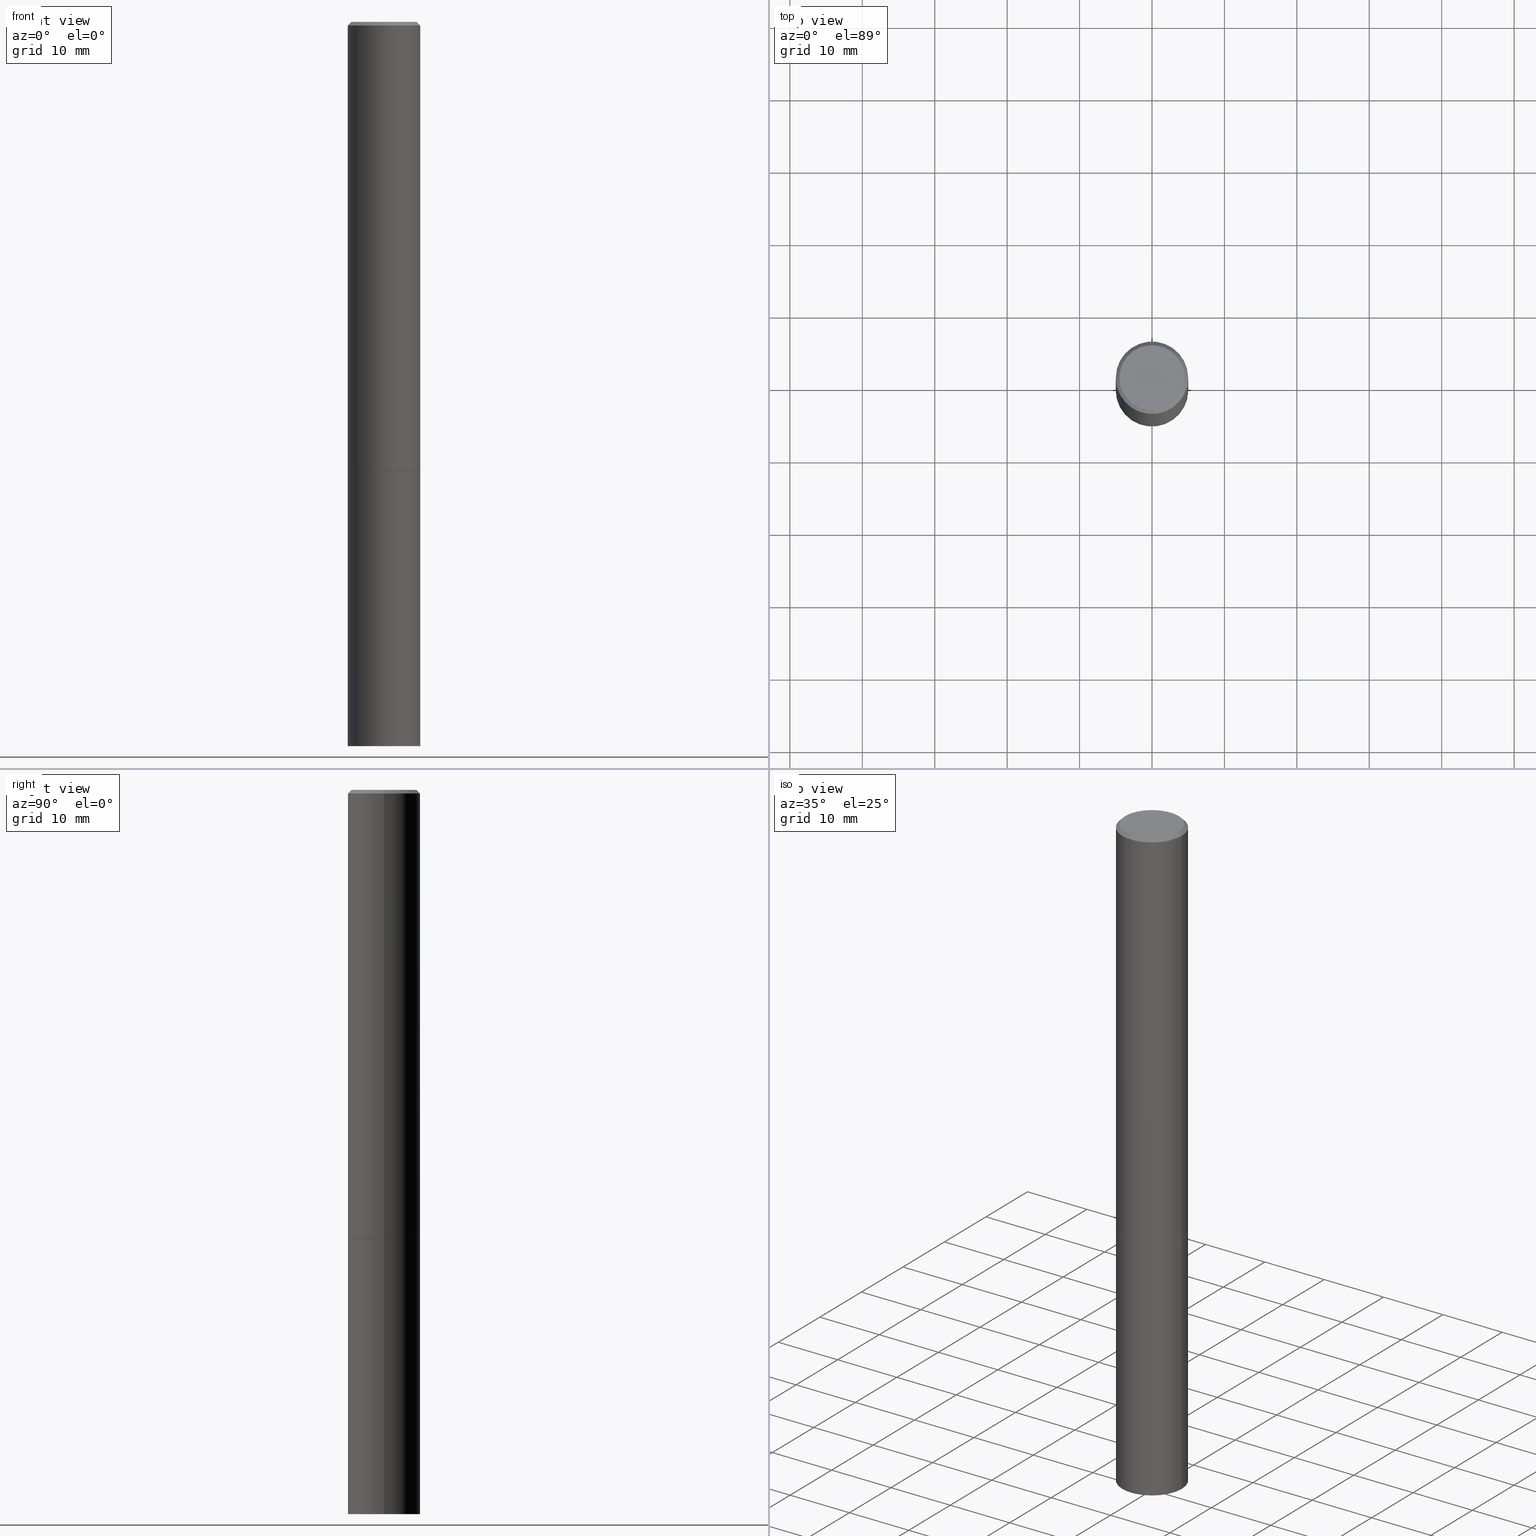
[diagram: canonical four-view strip — front | top / right | iso, engineering-drawing reading convention]
A machine part, canonical four-view strip (front | top / right | iso — engineering-drawing reading convention). The complete STEP part file that produces these views, byte-faithful:
ISO-10303-21;
HEADER;
FILE_DESCRIPTION (( 'STEP AP203' ),
    '1' );
FILE_NAME ('43325.STEP',
    '2024-02-28T04:28:04',
    ( '' ),
    ( '' ),
    'SwSTEP 2.0',
    'SolidWorks 2023',
    '' );
FILE_SCHEMA (( 'CONFIG_CONTROL_DESIGN' ));
ENDSEC;

DATA;
#1 = ADVANCED_FACE ( 'NONE', ( #193 ), #311, .T. ) ;
#2 = PERSON_AND_ORGANIZATION ( #30, #282 ) ;
#3 = ORIENTED_EDGE ( 'NONE', *, *, #116, .F. ) ;
#4 = VERTEX_POINT ( 'NONE', #305 ) ;
#5 = EDGE_CURVE ( 'NONE', #160, #4, #47, .T. ) ;
#6 = CARTESIAN_POINT ( 'NONE',  ( 0.1968500000000000250, -1.512055823412800660E-14, -3.937000000000000277 ) ) ;
#7 = ORIENTED_EDGE ( 'NONE', *, *, #316, .F. ) ;
#8 = DIRECTION ( 'NONE',  ( -2.445468806185136597E-29, 3.491481338843145583E-15, 1.000000000000000000 ) ) ;
#9 = DATE_AND_TIME ( #184, #306 ) ;
#10 = DIRECTION ( 'NONE',  ( -0.7071067811865469066, 2.468850131082250355E-15, -0.7071067811865481278 ) ) ;
#11 = DIRECTION ( 'NONE',  ( -2.445468806185136597E-29, 3.491481338843145583E-15, 1.000000000000000000 ) ) ;
#12 = CIRCLE ( 'NONE', #315, 0.1968500000000000250 ) ;
#13 = ORIENTED_EDGE ( 'NONE', *, *, #5, .F. ) ;
#14 = CARTESIAN_POINT ( 'NONE',  ( -0.1968500000000000527, -2.895644097366364896E-15, -2.439899999999999736 ) ) ;
#15 = DIRECTION ( 'NONE',  ( 1.000000000000000000, 0.000000000000000000, 0.000000000000000000 ) ) ;
#16 = EDGE_CURVE ( 'NONE', #231, #160, #143, .T. ) ;
#17 = CARTESIAN_POINT ( 'NONE',  ( 5.969144809017300159E-29, -8.522356799982234543E-15, -2.440900000000000070 ) ) ;
#18 = LOCAL_TIME ( 23, 28, 4.000000000000000000, #277 ) ;
#19 = CARTESIAN_POINT ( 'NONE',  ( 5.969144809017300159E-29, -8.522356799982234543E-15, -2.440900000000000070 ) ) ;
#20 = EDGE_CURVE ( 'NONE', #261, #4, #351, .T. ) ;
#21 = ORIENTED_EDGE ( 'NONE', *, *, #349, .T. ) ;
#22 = CARTESIAN_POINT ( 'NONE',  ( 5.966699340211114556E-29, -8.518865318643389958E-15, -2.439899999999999736 ) ) ;
#23 = SHAPE_DEFINITION_REPRESENTATION ( #264, #119 ) ;
#24 = CARTESIAN_POINT ( 'NONE',  ( 1.234936949548813631E-15, 0.1768499999999996464, -6.153342185293588703E-16 ) ) ;
#25 = AXIS2_PLACEMENT_3D ( 'NONE', #249, #336, #51 ) ;
#26 = COORDINATED_UNIVERSAL_TIME_OFFSET ( 5, 0, .BEHIND. ) ;
#27 = FACE_OUTER_BOUND ( 'NONE', #149, .T. ) ;
#28 = ORIENTED_EDGE ( 'NONE', *, *, #88, .F. ) ;
#29 = UNCERTAINTY_MEASURE_WITH_UNIT (LENGTH_MEASURE( 1.000000000000000082E-05 ), #354, 'distance_accuracy_value', 'NONE');
#30 = PERSON ( 'UNSPECIFIED', 'UNSPECIFIED', 'UNSPECIFIED', ('UNSPECIFIED'), ('UNSPECIFIED'), ('UNSPECIFIED') ) ;
#31 = ORIENTED_EDGE ( 'NONE', *, *, #251, .T. ) ;
#32 = ADVANCED_FACE ( 'NONE', ( #239 ), #96, .F. ) ;
#33 = VERTEX_POINT ( 'NONE', #357 ) ;
#34 = AXIS2_PLACEMENT_3D ( 'NONE', #327, #178, #215 ) ;
#35 = DIRECTION ( 'NONE',  ( -2.445468806185136597E-29, 3.491481338843145583E-15, 1.000000000000000000 ) ) ;
#36 = EDGE_LOOP ( 'NONE', ( #39, #324, #208, #181 ) ) ;
#37 = APPLICATION_CONTEXT ( 'configuration controlled 3d designs of mechanical parts and assemblies' ) ;
#38 = CARTESIAN_POINT ( 'NONE',  ( 4.890937612370278413E-31, -6.982962677686297772E-17, -0.02000000000000002123 ) ) ;
#39 = ORIENTED_EDGE ( 'NONE', *, *, #253, .F. ) ;
#40 = CARTESIAN_POINT ( 'NONE',  ( -1.043851414335219820E-46, 1.490343170380447200E-32, 4.268512490100411279E-18 ) ) ;
#41 = AXIS2_PLACEMENT_3D ( 'NONE', #135, #320, #68 ) ;
#42 = LINE ( 'NONE', #348, #365 ) ;
#43 = DIRECTION ( 'NONE',  ( 2.445468806185136597E-29, -3.491481338843145583E-15, -1.000000000000000000 ) ) ;
#44 = DIRECTION ( 'NONE',  ( 0.000000000000000000, 0.000000000000000000, 1.000000000000000000 ) ) ;
#45 = EDGE_CURVE ( 'NONE', #72, #33, #107, .T. ) ;
#46 = DIRECTION ( 'NONE',  ( -2.445468806185136597E-29, 3.491481338843145583E-15, 1.000000000000000000 ) ) ;
#47 = LINE ( 'NONE', #246, #281 ) ;
#48 = CIRCLE ( 'NONE', #228, 0.1958499999999999963 ) ;
#49 =( GEOMETRIC_REPRESENTATION_CONTEXT ( 3 ) GLOBAL_UNCERTAINTY_ASSIGNED_CONTEXT ( ( #29 ) ) GLOBAL_UNIT_ASSIGNED_CONTEXT ( ( #354, #242, #212 ) ) REPRESENTATION_CONTEXT ( 'NONE', 'WORKASPACE' ) );
#50 = CARTESIAN_POINT ( 'NONE',  ( 0.000000000000000000, 0.000000000000000000, 0.000000000000000000 ) ) ;
#51 = DIRECTION ( 'NONE',  ( 1.000000000000000000, -6.982962677686267499E-15, 0.000000000000000000 ) ) ;
#52 = CALENDAR_DATE ( 2024, 27, 2 ) ;
#53 = DIRECTION ( 'NONE',  ( 2.445468806185136597E-29, -3.491481338843145583E-15, -1.000000000000000000 ) ) ;
#54 = ADVANCED_FACE ( 'NONE', ( #197 ), #286, .F. ) ;
#55 = APPROVAL_DATE_TIME ( #278, #295 ) ;
#56 = CONICAL_SURFACE ( 'NONE', #313, 0.1968499999999996364, 0.7853981633974473908 ) ;
#57 = VERTEX_POINT ( 'NONE', #302 ) ;
#58 = EDGE_CURVE ( 'NONE', #156, #262, #42, .T. ) ;
#59 = CIRCLE ( 'NONE', #41, 0.1968499999999996364 ) ;
#60 = APPROVAL_PERSON_ORGANIZATION ( #79, #295, #308 ) ;
#61 = CARTESIAN_POINT ( 'NONE',  ( -0.1958499999999999963, -7.130758851996077764E-15, -2.440900000000000070 ) ) ;
#62 = EDGE_CURVE ( 'NONE', #57, #4, #59, .T. ) ;
#63 = ORIENTED_EDGE ( 'NONE', *, *, #122, .F. ) ;
#64 = PRODUCT ( '43325', '43325', '', ( #271 ) ) ;
#65 = DIRECTION ( 'NONE',  ( -2.445468806185136597E-29, 3.491481338843145583E-15, 1.000000000000000000 ) ) ;
#66 = ORIENTED_EDGE ( 'NONE', *, *, #127, .T. ) ;
#67 = DIRECTION ( 'NONE',  ( 0.7071067811864388819, -2.468850131081119129E-15, 0.7071067811866561525 ) ) ;
#68 = DIRECTION ( 'NONE',  ( 1.000000000000000000, -6.982962677686266711E-15, 0.000000000000000000 ) ) ;
#69 = ORIENTED_EDGE ( 'NONE', *, *, #122, .T. ) ;
#70 = DIRECTION ( 'NONE',  ( -2.445468806185136597E-29, 3.491481338843145583E-15, 1.000000000000000000 ) ) ;
#71 = PERSON_AND_ORGANIZATION ( #30, #282 ) ;
#72 = VERTEX_POINT ( 'NONE', #6 ) ;
#73 = AXIS2_PLACEMENT_3D ( 'NONE', #17, #217, #163 ) ;
#74 = COORDINATED_UNIVERSAL_TIME_OFFSET ( 5, 0, .BEHIND. ) ;
#75 = CARTESIAN_POINT ( 'NONE',  ( 0.000000000000000000, 0.000000000000000000, 0.000000000000000000 ) ) ;
#76 = CC_DESIGN_PERSON_AND_ORGANIZATION_ASSIGNMENT ( #194, #117, ( #89 ) ) ;
#77 = DIRECTION ( 'NONE',  ( -2.445468806185136877E-29, 3.491481338843145188E-15, 1.000000000000000000 ) ) ;
#78 = AXIS2_PLACEMENT_3D ( 'NONE', #100, #70, #299 ) ;
#79 = PERSON_AND_ORGANIZATION ( #30, #282 ) ;
#80 = CC_DESIGN_APPROVAL ( #214, ( #355 ) ) ;
#81 = CARTESIAN_POINT ( 'NONE',  ( -0.1968500000000000250, -9.735456040160091980E-15, -2.440900000000000070 ) ) ;
#82 = CARTESIAN_POINT ( 'NONE',  ( -0.1958499999999999963, -7.125460397647855362E-15, -2.440900000000000070 ) ) ;
#83 = ADVANCED_FACE ( 'NONE', ( #240 ), #179, .T. ) ;
#84 = COORDINATED_UNIVERSAL_TIME_OFFSET ( 5, 0, .BEHIND. ) ;
#85 = COORDINATED_UNIVERSAL_TIME_OFFSET ( 5, 0, .BEHIND. ) ;
#86 = CLOSED_SHELL ( 'NONE', ( #224, #83, #54, #1 ) ) ;
#87 = EDGE_LOOP ( 'NONE', ( #3, #110, #257, #159 ) ) ;
#88 = EDGE_CURVE ( 'NONE', #72, #156, #137, .T. ) ;
#89 = SECURITY_CLASSIFICATION ( '', '', #256 ) ;
#90 = PERSON_AND_ORGANIZATION_ROLE ( 'creator' ) ;
#91 = ORIENTED_EDGE ( 'NONE', *, *, #147, .T. ) ;
#92 = DATE_TIME_ROLE ( 'classification_date' ) ;
#93 = DIRECTION ( 'NONE',  ( 1.000000000000000000, -6.982962677686267499E-15, 0.000000000000000000 ) ) ;
#94 = ORIENTED_EDGE ( 'NONE', *, *, #16, .T. ) ;
#95 = AXIS2_PLACEMENT_3D ( 'NONE', #50, #222, #104 ) ;
#96 = PLANE ( 'NONE',  #321 ) ;
#97 = CARTESIAN_POINT ( 'NONE',  ( 1.374596203102637849E-15, 0.1968499999999862582, -3.937000000000000721 ) ) ;
#98 = PERSON_AND_ORGANIZATION ( #30, #282 ) ;
#99 = EDGE_LOOP ( 'NONE', ( #317, #155, #69, #204 ) ) ;
#100 = CARTESIAN_POINT ( 'NONE',  ( -1.043851414335219820E-46, 1.490343170380447200E-32, 4.268512490100411279E-18 ) ) ;
#101 = LENGTH_MEASURE_WITH_UNIT ( LENGTH_MEASURE( 0.02539999999999999897 ), #335 );
#102 = LINE ( 'NONE', #158, #341 ) ;
#103 = PERSON_AND_ORGANIZATION_ROLE ( 'design_owner' ) ;
#104 = DIRECTION ( 'NONE',  ( 1.000000000000000000, -6.982962677686266711E-15, 4.876176775795935793E-29 ) ) ;
#105 = CC_DESIGN_PERSON_AND_ORGANIZATION_ASSIGNMENT ( #173, #284, ( #164 ) ) ;
#106 = CIRCLE ( 'NONE', #73, 0.1958499999999999963 ) ;
#107 = LINE ( 'NONE', #218, #258 ) ;
#108 = DIRECTION ( 'NONE',  ( -1.000000000000000000, 6.982962677686265922E-15, -4.876176775795935793E-29 ) ) ;
#109 = CALENDAR_DATE ( 2024, 27, 2 ) ;
#110 = ORIENTED_EDGE ( 'NONE', *, *, #253, .T. ) ;
#111 = DIRECTION ( 'NONE',  ( 1.000000000000000000, -6.982962677686262766E-15, 0.000000000000000000 ) ) ;
#112 = AXIS2_PLACEMENT_3D ( 'NONE', #361, #165, #252 ) ;
#113 = VECTOR ( 'NONE', #245, 39.37007874015748143 ) ;
#114 = EDGE_CURVE ( 'NONE', #4, #57, #237, .T. ) ;
#115 = DIRECTION ( 'NONE',  ( -2.445468806185136597E-29, 3.491481338843145583E-15, 1.000000000000000000 ) ) ;
#116 = EDGE_CURVE ( 'NONE', #225, #261, #300, .T. ) ;
#117 = PERSON_AND_ORGANIZATION_ROLE ( 'classification_officer' ) ;
#118 = CALENDAR_DATE ( 2024, 27, 2 ) ;
#119 = ADVANCED_BREP_SHAPE_REPRESENTATION ( '43325', ( #207, #211, #291 ), #49 ) ;
#120 = CONICAL_SURFACE ( 'NONE', #274, 0.1958499999999999963, 0.7853981633972946241 ) ;
#121 = LOCAL_TIME ( 23, 28, 4.000000000000000000, #85 ) ;
#122 = EDGE_CURVE ( 'NONE', #347, #287, #102, .T. ) ;
#123 = ORIENTED_EDGE ( 'NONE', *, *, #114, .F. ) ;
#124 = EDGE_LOOP ( 'NONE', ( #28, #269 ) ) ;
#125 = DIRECTION ( 'NONE',  ( -1.000000000000000000, 6.982962677686265922E-15, -4.876176775795935793E-29 ) ) ;
#126 = DIRECTION ( 'NONE',  ( 2.438088387897960049E-29, -3.491481338843145188E-15, -1.000000000000000000 ) ) ;
#127 = EDGE_CURVE ( 'NONE', #160, #287, #226, .T. ) ;
#128 = AXIS2_PLACEMENT_3D ( 'NONE', #333, #161, #273 ) ;
#129 = CC_DESIGN_APPROVAL ( #295, ( #89 ) ) ;
#130 = DIRECTION ( 'NONE',  ( 1.000000000000000000, -6.982962677686262766E-15, 0.000000000000000000 ) ) ;
#131 = APPLICATION_PROTOCOL_DEFINITION ( 'international standard', 'config_control_design', 1994, #227 ) ;
#132 = ORIENTED_EDGE ( 'NONE', *, *, #266, .F. ) ;
#133 = FACE_OUTER_BOUND ( 'NONE', #260, .T. ) ;
#134 = PERSON_AND_ORGANIZATION ( #30, #282 ) ;
#135 = CARTESIAN_POINT ( 'NONE',  ( 4.890937612370278413E-31, -6.982962677686297772E-17, -0.02000000000000002123 ) ) ;
#136 = DIRECTION ( 'NONE',  ( 1.000000000000000000, -6.982962677686265922E-15, 4.876176775795935793E-29 ) ) ;
#137 = CIRCLE ( 'NONE', #199, 0.1968500000000000250 ) ;
#138 = CARTESIAN_POINT ( 'NONE',  ( 0.1958499999999999963, -9.889970040407088560E-15, -2.440900000000000070 ) ) ;
#139 = AXIS2_PLACEMENT_3D ( 'NONE', #334, #363, #338 ) ;
#140 = CARTESIAN_POINT ( 'NONE',  ( 0.1968499999999998307, -1.374596203102540425E-15, 9.598753983154291049E-30 ) ) ;
#141 = EDGE_LOOP ( 'NONE', ( #213, #297, #132, #148 ) ) ;
#142 = LINE ( 'NONE', #168, #201 ) ;
#143 = LINE ( 'NONE', #61, #330 ) ;
#144 = DIRECTION ( 'NONE',  ( -1.000000000000000000, 6.982962677686266711E-15, 0.000000000000000000 ) ) ;
#145 = AXIS2_PLACEMENT_3D ( 'NONE', #19, #46, #248 ) ;
#146 = CYLINDRICAL_SURFACE ( 'NONE', #95, 0.1968499999999998307 ) ;
#147 = EDGE_CURVE ( 'NONE', #347, #231, #48, .T. ) ;
#148 = ORIENTED_EDGE ( 'NONE', *, *, #45, .F. ) ;
#149 = EDGE_LOOP ( 'NONE', ( #91, #94, #175, #63 ) ) ;
#150 = LOCAL_TIME ( 23, 28, 4.000000000000000000, #26 ) ;
#151 = DIRECTION ( 'NONE',  ( -0.7071067811864388819, 7.493145998869961307E-15, 0.7071067811866561525 ) ) ;
#152 = APPROVAL ( #255, 'UNSPECIFIED' ) ;
#153 = LOCAL_TIME ( 23, 28, 4.000000000000000000, #84 ) ;
#154 = EDGE_LOOP ( 'NONE', ( #319, #7 ) ) ;
#155 = ORIENTED_EDGE ( 'NONE', *, *, #316, .T. ) ;
#156 = VERTEX_POINT ( 'NONE', #353 ) ;
#157 = ADVANCED_FACE ( 'NONE', ( #206 ), #120, .T. ) ;
#158 = CARTESIAN_POINT ( 'NONE',  ( 0.1958499999999999963, -9.889970040407088560E-15, -2.440900000000000070 ) ) ;
#159 = ORIENTED_EDGE ( 'NONE', *, *, #20, .F. ) ;
#160 = VERTEX_POINT ( 'NONE', #14 ) ;
#161 = DIRECTION ( 'NONE',  ( -2.445468806185136597E-29, 3.491481338843145583E-15, 1.000000000000000000 ) ) ;
#162 = CLOSED_SHELL ( 'NONE', ( #280, #285, #183, #322, #189, #157, #32, #176 ) ) ;
#163 = DIRECTION ( 'NONE',  ( 1.000000000000000000, -6.982962677686262766E-15, 0.000000000000000000 ) ) ;
#164 = PRODUCT_DEFINITION_FORMATION_WITH_SPECIFIED_SOURCE ( 'ANY', '', #64, .NOT_KNOWN. ) ;
#165 = DIRECTION ( 'NONE',  ( -2.445468806185136597E-29, 3.491481338843145583E-15, 1.000000000000000000 ) ) ;
#166 = EDGE_CURVE ( 'NONE', #261, #225, #268, .T. ) ;
#167 = CALENDAR_DATE ( 2024, 27, 2 ) ;
#168 = CARTESIAN_POINT ( 'NONE',  ( 0.1968499999999996364, -1.420318657638186558E-15, -0.02000000000000002123 ) ) ;
#169 = CYLINDRICAL_SURFACE ( 'NONE', #139, 0.1968500000000000250 ) ;
#170 = AXIS2_PLACEMENT_3D ( 'NONE', #24, #340, #108 ) ;
#171 = APPROVAL_PERSON_ORGANIZATION ( #310, #152, #366 ) ;
#172 = APPROVAL_DATE_TIME ( #196, #152 ) ;
#173 = PERSON_AND_ORGANIZATION ( #30, #282 ) ;
#174 = CC_DESIGN_DATE_AND_TIME_ASSIGNMENT ( #364, #92, ( #89 ) ) ;
#175 = ORIENTED_EDGE ( 'NONE', *, *, #251, .F. ) ;
#176 = ADVANCED_FACE ( 'NONE', ( #133 ), #241, .F. ) ;
#177 = ORIENTED_EDGE ( 'NONE', *, *, #5, .T. ) ;
#178 = DIRECTION ( 'NONE',  ( 2.438088387897960049E-29, -3.491481338843145188E-15, -1.000000000000000000 ) ) ;
#179 = PLANE ( 'NONE',  #290 ) ;
#180 = ORIENTED_EDGE ( 'NONE', *, *, #198, .F. ) ;
#181 = ORIENTED_EDGE ( 'NONE', *, *, #114, .T. ) ;
#182 = AXIS2_PLACEMENT_3D ( 'NONE', #318, #65, #263 ) ;
#183 = ADVANCED_FACE ( 'NONE', ( #279 ), #56, .T. ) ;
#184 = CALENDAR_DATE ( 2024, 27, 2 ) ;
#185 = DIRECTION ( 'NONE',  ( -2.438088387897960049E-29, 3.491481338843145188E-15, 1.000000000000000000 ) ) ;
#186 = DIRECTION ( 'NONE',  ( -2.445468806185136597E-29, 3.491481338843145583E-15, 1.000000000000000000 ) ) ;
#187 = DIRECTION ( 'NONE',  ( 0.7071067811865469066, -7.319954787623254468E-15, -0.7071067811865481278 ) ) ;
#188 = DATE_AND_TIME ( #109, #18 ) ;
#189 = ADVANCED_FACE ( 'NONE', ( #312 ), #219, .T. ) ;
#190 = CARTESIAN_POINT ( 'NONE',  ( -0.1768499999999996464, 1.269851762937245083E-15, 4.268512490091652920E-18 ) ) ;
#191 = CIRCLE ( 'NONE', #301, 0.1968500000000000250 ) ;
#192 = CARTESIAN_POINT ( 'NONE',  ( 0.1968500000000000527, -9.893461521745931567E-15, -2.439899999999999736 ) ) ;
#193 = FACE_OUTER_BOUND ( 'NONE', #200, .T. ) ;
#194 = PERSON_AND_ORGANIZATION ( #30, #282 ) ;
#195 = DIRECTION ( 'NONE',  ( 1.000000000000000000, -6.982962677686266711E-15, 0.000000000000000000 ) ) ;
#196 = DATE_AND_TIME ( #52, #121 ) ;
#197 = FACE_OUTER_BOUND ( 'NONE', #265, .T. ) ;
#198 = EDGE_CURVE ( 'NONE', #262, #33, #12, .T. ) ;
#199 = AXIS2_PLACEMENT_3D ( 'NONE', #293, #232, #93 ) ;
#200 = EDGE_LOOP ( 'NONE', ( #233, #339, #325, #180 ) ) ;
#201 = VECTOR ( 'NONE', #187, 39.37007874015748143 ) ;
#202 = DIRECTION ( 'NONE',  ( 1.000000000000000000, -6.982962677686266711E-15, 0.000000000000000000 ) ) ;
#203 = DIRECTION ( 'NONE',  ( -2.445468806185136877E-29, 3.491481338843145188E-15, 1.000000000000000000 ) ) ;
#204 = ORIENTED_EDGE ( 'NONE', *, *, #127, .F. ) ;
#205 = AXIS2_PLACEMENT_3D ( 'NONE', #38, #356, #202 ) ;
#206 = FACE_OUTER_BOUND ( 'NONE', #99, .T. ) ;
#207 = MANIFOLD_SOLID_BREP ( 'Body-Move/Copy2[1]', #86 ) ;
#208 = ORIENTED_EDGE ( 'NONE', *, *, #20, .T. ) ;
#209 = CARTESIAN_POINT ( 'NONE',  ( -0.1968499999999996364, 1.304766576325675944E-15, -0.02000000000000002123 ) ) ;
#210 = DIRECTION ( 'NONE',  ( 1.000000000000000000, -6.982962677686266711E-15, 4.875932113059887537E-29 ) ) ;
#211 = MANIFOLD_SOLID_BREP ( 'Body-Move/Copy2[2]', #162 ) ;
#212 =( NAMED_UNIT ( * ) SI_UNIT ( $, .STERADIAN. ) SOLID_ANGLE_UNIT ( ) );
#213 = ORIENTED_EDGE ( 'NONE', *, *, #88, .T. ) ;
#214 = APPROVAL ( #216, 'UNSPECIFIED' ) ;
#215 = DIRECTION ( 'NONE',  ( -1.000000000000000000, 6.982962677686265922E-15, -4.876176775795935793E-29 ) ) ;
#216 = APPROVAL_STATUS ( 'not_yet_approved' ) ;
#217 = DIRECTION ( 'NONE',  ( -2.445468806185136597E-29, 3.491481338843145583E-15, 1.000000000000000000 ) ) ;
#218 = CARTESIAN_POINT ( 'NONE',  ( 0.1968500000000000250, -1.374596203102541608E-15, 9.598753983154300858E-30 ) ) ;
#219 = CYLINDRICAL_SURFACE ( 'NONE', #112, 0.1968499999999998307 ) ;
#220 = EDGE_CURVE ( 'NONE', #156, #72, #254, .T. ) ;
#221 = DIRECTION ( 'NONE',  ( -1.000000000000000000, 6.982962677686266711E-15, 0.000000000000000000 ) ) ;
#222 = DIRECTION ( 'NONE',  ( -2.445468806185136597E-29, 3.491481338843145583E-15, 1.000000000000000000 ) ) ;
#223 = CARTESIAN_POINT ( 'NONE',  ( 5.969144809017299038E-29, -8.522356799982232966E-15, -2.440900000000000070 ) ) ;
#224 = ADVANCED_FACE ( 'NONE', ( #272 ), #169, .T. ) ;
#225 = VERTEX_POINT ( 'NONE', #276 ) ;
#226 = CIRCLE ( 'NONE', #182, 0.1968500000000000527 ) ;
#227 = APPLICATION_CONTEXT ( 'configuration controlled 3d designs of mechanical parts and assemblies' ) ;
#228 = AXIS2_PLACEMENT_3D ( 'NONE', #270, #8, #235 ) ;
#229 = ORIENTED_EDGE ( 'NONE', *, *, #116, .T. ) ;
#230 = CONICAL_SURFACE ( 'NONE', #352, 0.1968499999999996364, 0.7853981633974473908 ) ;
#231 = VERTEX_POINT ( 'NONE', #82 ) ;
#232 = DIRECTION ( 'NONE',  ( -2.445468806185136597E-29, 3.491481338843145583E-15, 1.000000000000000000 ) ) ;
#233 = ORIENTED_EDGE ( 'NONE', *, *, #58, .F. ) ;
#234 = DIMENSIONAL_EXPONENTS ( 1.000000000000000000, 0.000000000000000000, 0.000000000000000000, 0.000000000000000000, 0.000000000000000000, 0.000000000000000000, 0.000000000000000000 ) ;
#235 = DIRECTION ( 'NONE',  ( 1.000000000000000000, -6.982962677686262766E-15, 0.000000000000000000 ) ) ;
#236 = APPROVAL_DATE_TIME ( #9, #214 ) ;
#237 = CIRCLE ( 'NONE', #205, 0.1968499999999996364 ) ;
#238 = APPROVAL_PERSON_ORGANIZATION ( #71, #214, #329 ) ;
#239 = FACE_OUTER_BOUND ( 'NONE', #154, .T. ) ;
#240 = FACE_OUTER_BOUND ( 'NONE', #124, .T. ) ;
#241 = PLANE ( 'NONE',  #170 ) ;
#242 =( NAMED_UNIT ( * ) PLANE_ANGLE_UNIT ( ) SI_UNIT ( $, .RADIAN. ) );
#243 = VECTOR ( 'NONE', #10, 39.37007874015748143 ) ;
#244 = CC_DESIGN_DATE_AND_TIME_ASSIGNMENT ( #188, #247, ( #355 ) ) ;
#245 = DIRECTION ( 'NONE',  ( -2.445468806185136877E-29, 3.491481338843145188E-15, 1.000000000000000000 ) ) ;
#246 = CARTESIAN_POINT ( 'NONE',  ( -0.1968499999999998307, 1.398703375343756013E-15, -9.682923725166775270E-30 ) ) ;
#247 = DATE_TIME_ROLE ( 'creation_date' ) ;
#248 = DIRECTION ( 'NONE',  ( 1.000000000000000000, -6.982962677686262766E-15, 0.000000000000000000 ) ) ;
#249 = CARTESIAN_POINT ( 'NONE',  ( 9.627810689950883669E-29, -1.374596203102546341E-14, -3.937000000000000277 ) ) ;
#250 = CC_DESIGN_APPROVAL ( #152, ( #164 ) ) ;
#251 = EDGE_CURVE ( 'NONE', #287, #160, #342, .T. ) ;
#252 = DIRECTION ( 'NONE',  ( 1.000000000000000000, -6.982962677686266711E-15, 4.876176775795935793E-29 ) ) ;
#253 = EDGE_CURVE ( 'NONE', #225, #57, #142, .T. ) ;
#254 = CIRCLE ( 'NONE', #25, 0.1968500000000000250 ) ;
#255 = APPROVAL_STATUS ( 'not_yet_approved' ) ;
#256 = SECURITY_CLASSIFICATION_LEVEL ( 'unclassified' ) ;
#257 = ORIENTED_EDGE ( 'NONE', *, *, #62, .T. ) ;
#258 = VECTOR ( 'NONE', #77, 39.37007874015748143 ) ;
#259 = CONICAL_SURFACE ( 'NONE', #145, 0.1958499999999999963, 0.7853981633972946241 ) ;
#260 = EDGE_LOOP ( 'NONE', ( #298, #229 ) ) ;
#261 = VERTEX_POINT ( 'NONE', #190 ) ;
#262 = VERTEX_POINT ( 'NONE', #81 ) ;
#263 = DIRECTION ( 'NONE',  ( 1.000000000000000000, -6.982962677686266711E-15, 0.000000000000000000 ) ) ;
#264 = PRODUCT_DEFINITION_SHAPE ( 'NONE', 'NONE',  #355 ) ;
#265 = EDGE_LOOP ( 'NONE', ( #292, #288 ) ) ;
#266 = EDGE_CURVE ( 'NONE', #33, #262, #191, .T. ) ;
#267 = APPLICATION_PROTOCOL_DEFINITION ( 'international standard', 'config_control_design', 1994, #37 ) ;
#268 = CIRCLE ( 'NONE', #78, 0.1768499999999996464 ) ;
#269 = ORIENTED_EDGE ( 'NONE', *, *, #220, .F. ) ;
#270 = CARTESIAN_POINT ( 'NONE',  ( 5.969144809017300159E-29, -8.522356799982234543E-15, -2.440900000000000070 ) ) ;
#271 = MECHANICAL_CONTEXT ( 'NONE', #37, 'mechanical' ) ;
#272 = FACE_OUTER_BOUND ( 'NONE', #141, .T. ) ;
#273 = DIRECTION ( 'NONE',  ( 1.000000000000000000, -6.982962677686265922E-15, 4.876176775795935793E-29 ) ) ;
#274 = AXIS2_PLACEMENT_3D ( 'NONE', #296, #11, #130 ) ;
#275 = FACE_OUTER_BOUND ( 'NONE', #36, .T. ) ;
#276 = CARTESIAN_POINT ( 'NONE',  ( 0.1768499999999996464, -1.316798864272039577E-15, 4.268512490109333727E-18 ) ) ;
#277 = COORDINATED_UNIVERSAL_TIME_OFFSET ( 5, 0, .BEHIND. ) ;
#278 = DATE_AND_TIME ( #167, #153 ) ;
#279 = FACE_OUTER_BOUND ( 'NONE', #87, .T. ) ;
#280 = ADVANCED_FACE ( 'NONE', ( #27 ), #259, .T. ) ;
#281 = VECTOR ( 'NONE', #359, 39.37007874015748143 ) ;
#282 = ORGANIZATION ( 'UNSPECIFIED', 'UNSPECIFIED', '' ) ;
#283 = DIRECTION ( 'NONE',  ( -2.445468806185136597E-29, 3.491481338843145583E-15, 1.000000000000000000 ) ) ;
#284 = PERSON_AND_ORGANIZATION_ROLE ( 'design_supplier' ) ;
#285 = ADVANCED_FACE ( 'NONE', ( #307 ), #146, .T. ) ;
#286 = PLANE ( 'NONE',  #34 ) ;
#287 = VERTEX_POINT ( 'NONE', #192 ) ;
#288 = ORIENTED_EDGE ( 'NONE', *, *, #198, .T. ) ;
#289 = PRODUCT_RELATED_PRODUCT_CATEGORY ( 'detail', '', ( #64 ) ) ;
#290 = AXIS2_PLACEMENT_3D ( 'NONE', #97, #126, #125 ) ;
#291 = AXIS2_PLACEMENT_3D ( 'NONE', #75, #44, #15 ) ;
#292 = ORIENTED_EDGE ( 'NONE', *, *, #266, .T. ) ;
#293 = CARTESIAN_POINT ( 'NONE',  ( 9.627810689950883669E-29, -1.374596203102546341E-14, -3.937000000000000277 ) ) ;
#294 = ORIENTED_EDGE ( 'NONE', *, *, #62, .F. ) ;
#295 = APPROVAL ( #362, 'UNSPECIFIED' ) ;
#296 = CARTESIAN_POINT ( 'NONE',  ( 5.969144809017300159E-29, -8.522356799982234543E-15, -2.440900000000000070 ) ) ;
#297 = ORIENTED_EDGE ( 'NONE', *, *, #58, .T. ) ;
#298 = ORIENTED_EDGE ( 'NONE', *, *, #166, .T. ) ;
#299 = DIRECTION ( 'NONE',  ( 1.000000000000000000, -6.982962677686266711E-15, 4.875932113059887537E-29 ) ) ;
#300 = CIRCLE ( 'NONE', #344, 0.1768499999999996464 ) ;
#301 = AXIS2_PLACEMENT_3D ( 'NONE', #223, #283, #304 ) ;
#302 = CARTESIAN_POINT ( 'NONE',  ( 0.1968499999999996364, -1.420318657638186558E-15, -0.02000000000000002123 ) ) ;
#303 = CARTESIAN_POINT ( 'NONE',  ( 4.890937612370278413E-31, -6.982962677686297772E-17, -0.02000000000000002123 ) ) ;
#304 = DIRECTION ( 'NONE',  ( 1.000000000000000000, -6.982962677686262766E-15, 0.000000000000000000 ) ) ;
#305 = CARTESIAN_POINT ( 'NONE',  ( -0.1968499999999996364, 1.304766576325675944E-15, -0.02000000000000002123 ) ) ;
#306 = LOCAL_TIME ( 23, 28, 4.000000000000000000, #74 ) ;
#307 = FACE_OUTER_BOUND ( 'NONE', #350, .T. ) ;
#308 = APPROVAL_ROLE ( '' ) ;
#309 = CARTESIAN_POINT ( 'NONE',  ( 5.969144809017299038E-29, -8.522356799982232966E-15, -2.440900000000000070 ) ) ;
#310 = PERSON_AND_ORGANIZATION ( #30, #282 ) ;
#311 = CYLINDRICAL_SURFACE ( 'NONE', #128, 0.1968500000000000250 ) ;
#312 = FACE_OUTER_BOUND ( 'NONE', #343, .T. ) ;
#313 = AXIS2_PLACEMENT_3D ( 'NONE', #332, #53, #144 ) ;
#314 = CC_DESIGN_PERSON_AND_ORGANIZATION_ASSIGNMENT ( #134, #103, ( #64 ) ) ;
#315 = AXIS2_PLACEMENT_3D ( 'NONE', #309, #186, #111 ) ;
#316 = EDGE_CURVE ( 'NONE', #231, #347, #106, .T. ) ;
#317 = ORIENTED_EDGE ( 'NONE', *, *, #16, .F. ) ;
#318 = CARTESIAN_POINT ( 'NONE',  ( 5.966699340211114556E-29, -8.518865318643389958E-15, -2.439899999999999736 ) ) ;
#319 = ORIENTED_EDGE ( 'NONE', *, *, #147, .F. ) ;
#320 = DIRECTION ( 'NONE',  ( -2.445468806185136597E-29, 3.491481338843145583E-15, 1.000000000000000000 ) ) ;
#321 = AXIS2_PLACEMENT_3D ( 'NONE', #326, #185, #136 ) ;
#322 = ADVANCED_FACE ( 'NONE', ( #275 ), #230, .T. ) ;
#323 = PERSON_AND_ORGANIZATION_ROLE ( 'creator' ) ;
#324 = ORIENTED_EDGE ( 'NONE', *, *, #166, .F. ) ;
#325 = ORIENTED_EDGE ( 'NONE', *, *, #45, .T. ) ;
#326 = CARTESIAN_POINT ( 'NONE',  ( 5.969144809017300159E-29, -8.522356799982234543E-15, -2.440900000000000070 ) ) ;
#327 = CARTESIAN_POINT ( 'NONE',  ( 1.374596203102601167E-15, 0.1968499999999914762, -2.440900000000000514 ) ) ;
#328 = ORIENTED_EDGE ( 'NONE', *, *, #349, .F. ) ;
#329 = APPROVAL_ROLE ( '' ) ;
#330 = VECTOR ( 'NONE', #151, 39.37007874015748143 ) ;
#331 = CC_DESIGN_SECURITY_CLASSIFICATION ( #89, ( #164 ) ) ;
#332 = CARTESIAN_POINT ( 'NONE',  ( 4.890937612370278413E-31, -6.982962677686297772E-17, -0.02000000000000002123 ) ) ;
#333 = CARTESIAN_POINT ( 'NONE',  ( 0.000000000000000000, 0.000000000000000000, 0.000000000000000000 ) ) ;
#334 = CARTESIAN_POINT ( 'NONE',  ( 0.000000000000000000, 0.000000000000000000, 0.000000000000000000 ) ) ;
#335 =( LENGTH_UNIT ( ) NAMED_UNIT ( * ) SI_UNIT ( $, .METRE. ) );
#336 = DIRECTION ( 'NONE',  ( -2.445468806185136597E-29, 3.491481338843145583E-15, 1.000000000000000000 ) ) ;
#337 = CC_DESIGN_PERSON_AND_ORGANIZATION_ASSIGNMENT ( #98, #323, ( #355 ) ) ;
#338 = DIRECTION ( 'NONE',  ( 1.000000000000000000, -6.982962677686265922E-15, 4.876176775795935793E-29 ) ) ;
#339 = ORIENTED_EDGE ( 'NONE', *, *, #220, .T. ) ;
#340 = DIRECTION ( 'NONE',  ( 2.438088387897960049E-29, -3.491481338843145188E-15, -1.000000000000000000 ) ) ;
#341 = VECTOR ( 'NONE', #67, 39.37007874015748143 ) ;
#342 = CIRCLE ( 'NONE', #346, 0.1968500000000000527 ) ;
#343 = EDGE_LOOP ( 'NONE', ( #13, #66, #21, #123 ) ) ;
#344 = AXIS2_PLACEMENT_3D ( 'NONE', #40, #35, #210 ) ;
#345 = DESIGN_CONTEXT ( 'detailed design', #227, 'design' ) ;
#346 = AXIS2_PLACEMENT_3D ( 'NONE', #22, #115, #195 ) ;
#347 = VERTEX_POINT ( 'NONE', #138 ) ;
#348 = CARTESIAN_POINT ( 'NONE',  ( -0.1968500000000000250, 1.398703375343757393E-15, -9.682923725166783677E-30 ) ) ;
#349 = EDGE_CURVE ( 'NONE', #287, #57, #358, .T. ) ;
#350 = EDGE_LOOP ( 'NONE', ( #31, #177, #294, #328 ) ) ;
#351 = LINE ( 'NONE', #209, #243 ) ;
#352 = AXIS2_PLACEMENT_3D ( 'NONE', #303, #43, #221 ) ;
#353 = CARTESIAN_POINT ( 'NONE',  ( -0.1968500000000000250, -9.735456040160091980E-15, -3.937000000000000277 ) ) ;
#354 =( CONVERSION_BASED_UNIT ( 'INCH', #101 ) LENGTH_UNIT ( ) NAMED_UNIT ( #234 ) );
#355 = PRODUCT_DEFINITION ( 'UNKNOWN', '', #164, #345 ) ;
#356 = DIRECTION ( 'NONE',  ( -2.445468806185136597E-29, 3.491481338843145583E-15, 1.000000000000000000 ) ) ;
#357 = CARTESIAN_POINT ( 'NONE',  ( 0.1968500000000000250, -9.896953003084774574E-15, -2.440900000000000070 ) ) ;
#358 = LINE ( 'NONE', #140, #113 ) ;
#359 = DIRECTION ( 'NONE',  ( -2.445468806185136877E-29, 3.491481338843145188E-15, 1.000000000000000000 ) ) ;
#360 = CC_DESIGN_PERSON_AND_ORGANIZATION_ASSIGNMENT ( #2, #90, ( #164 ) ) ;
#361 = CARTESIAN_POINT ( 'NONE',  ( 0.000000000000000000, 0.000000000000000000, 0.000000000000000000 ) ) ;
#362 = APPROVAL_STATUS ( 'not_yet_approved' ) ;
#363 = DIRECTION ( 'NONE',  ( -2.445468806185136597E-29, 3.491481338843145583E-15, 1.000000000000000000 ) ) ;
#364 = DATE_AND_TIME ( #118, #150 ) ;
#365 = VECTOR ( 'NONE', #203, 39.37007874015748143 ) ;
#366 = APPROVAL_ROLE ( '' ) ;
ENDSEC;
END-ISO-10303-21;
